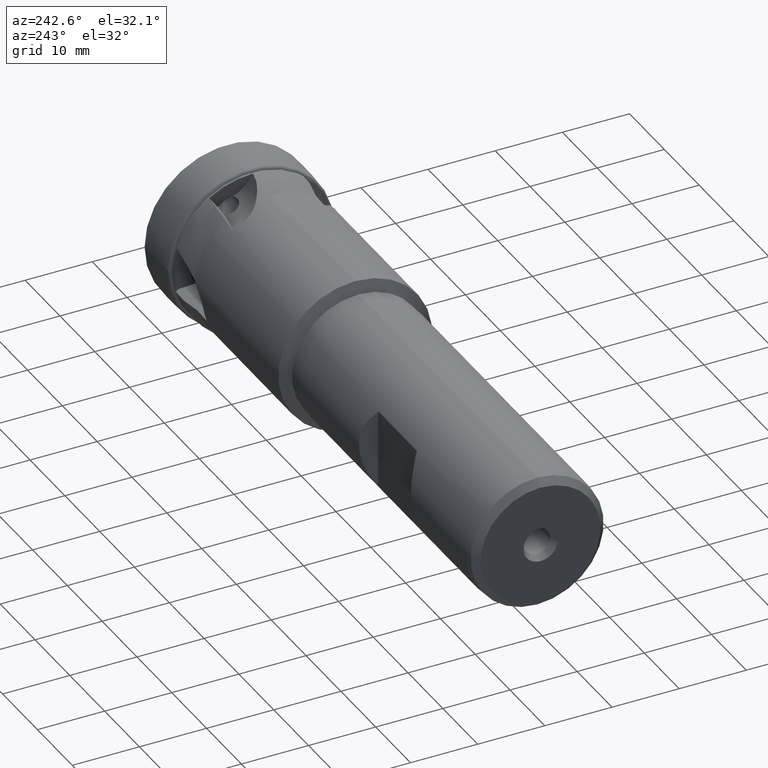
[diagram: clean part render]
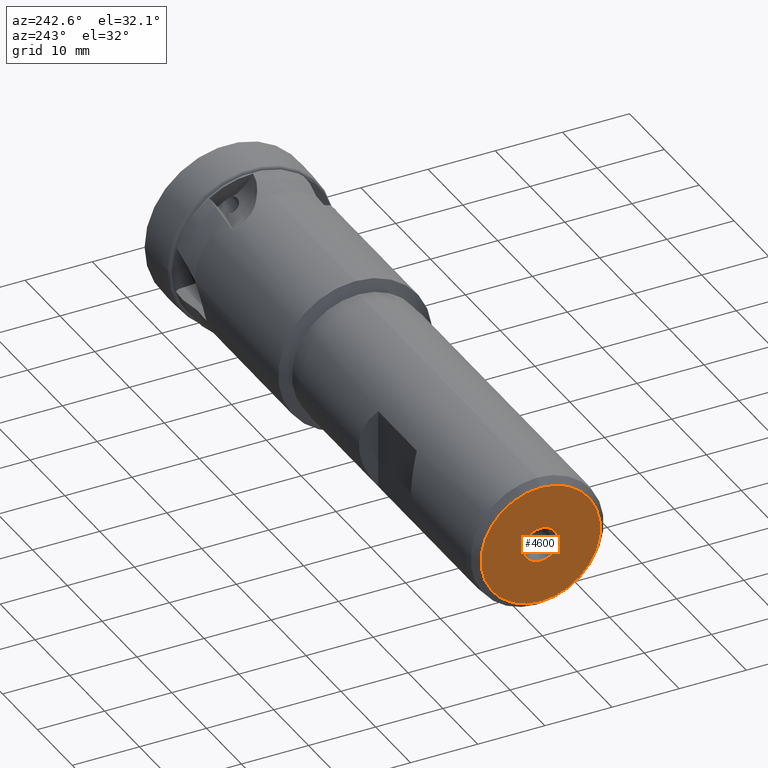
[diagram: same view with one face highlighted and labeled with its STEP entity id]
A machine part, auxiliary view. The second image highlights one B-rep face of the part: STEP entity #4600.
In plain terms, the highlighted planar face has unit normal (-1, 0, 0).
Its self-contained STEP definition (entity closure, byte-faithful):
#53 = CIRCLE ( 'NONE', #1581, 2.577350269189616400 ) ;
#541 = EDGE_CURVE ( 'NONE', #5119, #5134, #53, .T. ) ;
#614 = EDGE_CURVE ( 'NONE', #4694, #5153, #4313, .T. ) ;
#892 = AXIS2_PLACEMENT_3D ( 'NONE', #3823, #3822, #3829 ) ;
#1581 = AXIS2_PLACEMENT_3D ( 'NONE', #4119, #4120, #4121 ) ;
#1800 = CARTESIAN_POINT ( 'NONE',  ( -89.50000000000000000, 0.0000000000000000000, -8.899999999999989700 ) ) ;
#1903 = CARTESIAN_POINT ( 'NONE',  ( -89.50000000000000000, 0.0000000000000000000, 2.577350269189616400 ) ) ;
#1918 = CARTESIAN_POINT ( 'NONE',  ( -89.50000000000000000, 3.156343757444632900E-016, -2.577350269189616400 ) ) ;
#1937 = CARTESIAN_POINT ( 'NONE',  ( -89.50000000000000000, 1.151167991198510900E-015, 8.899999999999989700 ) ) ;
#2032 = CARTESIAN_POINT ( 'NONE',  ( -89.50000000000000000, 0.0000000000000000000, 0.0000000000000000000 ) ) ;
#2033 = DIRECTION ( 'NONE',  ( 1.000000000000000000, -0.0000000000000000000, -0.0000000000000000000 ) ) ;
#2034 = DIRECTION ( 'NONE',  ( 0.0000000000000000000, 0.0000000000000000000, -1.000000000000000000 ) ) ;
#2037 = CARTESIAN_POINT ( 'NONE',  ( -89.50000000000000000, 0.0000000000000000000, 0.0000000000000000000 ) ) ;
#2038 = DIRECTION ( 'NONE',  ( 1.000000000000000000, -0.0000000000000000000, -0.0000000000000000000 ) ) ;
#2039 = DIRECTION ( 'NONE',  ( 0.0000000000000000000, 0.0000000000000000000, -1.000000000000000000 ) ) ;
#2358 = ORIENTED_EDGE ( 'NONE', *, *, #541, .T. ) ;
#2359 = ORIENTED_EDGE ( 'NONE', *, *, #5191, .T. ) ;
#2360 = ORIENTED_EDGE ( 'NONE', *, *, #614, .F. ) ;
#2361 = ORIENTED_EDGE ( 'NONE', *, *, #5192, .F. ) ;
#3373 = CARTESIAN_POINT ( 'NONE',  ( -89.50000000000000000, 0.0000000000000000000, 0.0000000000000000000 ) ) ;
#3374 = DIRECTION ( 'NONE',  ( 1.000000000000000000, -0.0000000000000000000, -0.0000000000000000000 ) ) ;
#3375 = DIRECTION ( 'NONE',  ( 0.0000000000000000000, 0.0000000000000000000, -1.000000000000000000 ) ) ;
#3822 = DIRECTION ( 'NONE',  ( -1.000000000000000000, 0.0000000000000000000, 0.0000000000000000000 ) ) ;
#3823 = CARTESIAN_POINT ( 'NONE',  ( -89.50000000000000000, 8.899999999999989700, 0.0000000000000000000 ) ) ;
#3824 = FACE_BOUND ( 'NONE', #4745, .T. ) ;
#3826 = FACE_OUTER_BOUND ( 'NONE', #4738, .T. ) ;
#3827 = PLANE ( 'NONE',  #892 ) ;
#3829 = DIRECTION ( 'NONE',  ( 0.0000000000000000000, 0.0000000000000000000, 1.000000000000000000 ) ) ;
#4119 = CARTESIAN_POINT ( 'NONE',  ( -89.50000000000000000, 0.0000000000000000000, 0.0000000000000000000 ) ) ;
#4120 = DIRECTION ( 'NONE',  ( 1.000000000000000000, -0.0000000000000000000, -0.0000000000000000000 ) ) ;
#4121 = DIRECTION ( 'NONE',  ( 0.0000000000000000000, 0.0000000000000000000, -1.000000000000000000 ) ) ;
#4313 = CIRCLE ( 'NONE', #4316, 8.899999999999989700 ) ;
#4316 = AXIS2_PLACEMENT_3D ( 'NONE', #3373, #3374, #3375 ) ;
#4600 = ADVANCED_FACE ( 'NONE', ( #3824, #3826 ), #3827, .T. ) ;
#4694 = VERTEX_POINT ( 'NONE', #1800 ) ;
#4738 = EDGE_LOOP ( 'NONE', ( #2360, #2361 ) ) ;
#4745 = EDGE_LOOP ( 'NONE', ( #2358, #2359 ) ) ;
#4922 = CIRCLE ( 'NONE', #4925, 2.577350269189616400 ) ;
#4924 = CIRCLE ( 'NONE', #4927, 8.899999999999989700 ) ;
#4925 = AXIS2_PLACEMENT_3D ( 'NONE', #2032, #2033, #2034 ) ;
#4927 = AXIS2_PLACEMENT_3D ( 'NONE', #2037, #2038, #2039 ) ;
#5119 = VERTEX_POINT ( 'NONE', #1903 ) ;
#5134 = VERTEX_POINT ( 'NONE', #1918 ) ;
#5153 = VERTEX_POINT ( 'NONE', #1937 ) ;
#5191 = EDGE_CURVE ( 'NONE', #5134, #5119, #4922, .T. ) ;
#5192 = EDGE_CURVE ( 'NONE', #5153, #4694, #4924, .T. ) ;